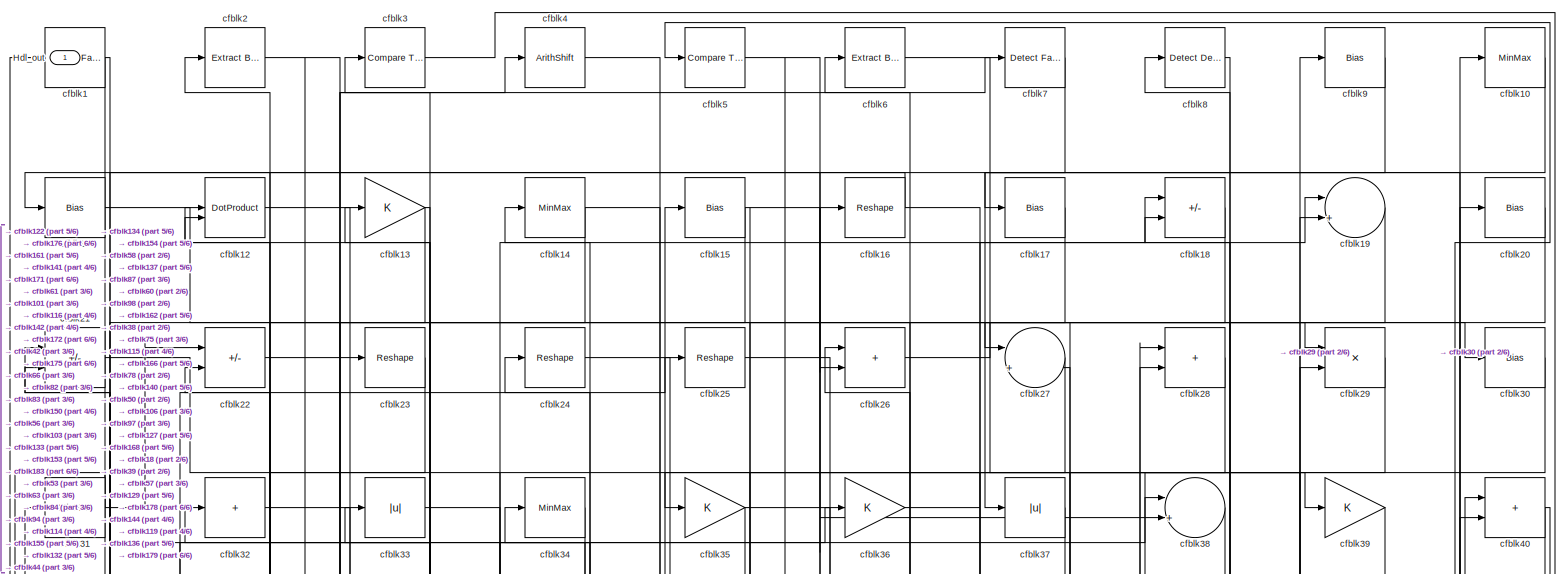
[diagram: root canvas - part 1/6, full width, top band]
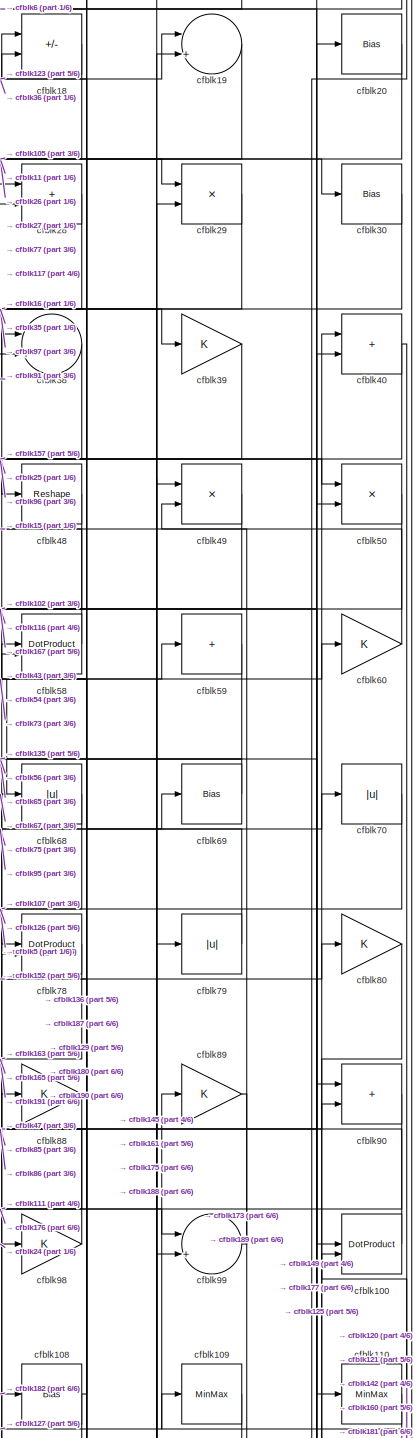
[diagram: root canvas - part 2/6, top right region]
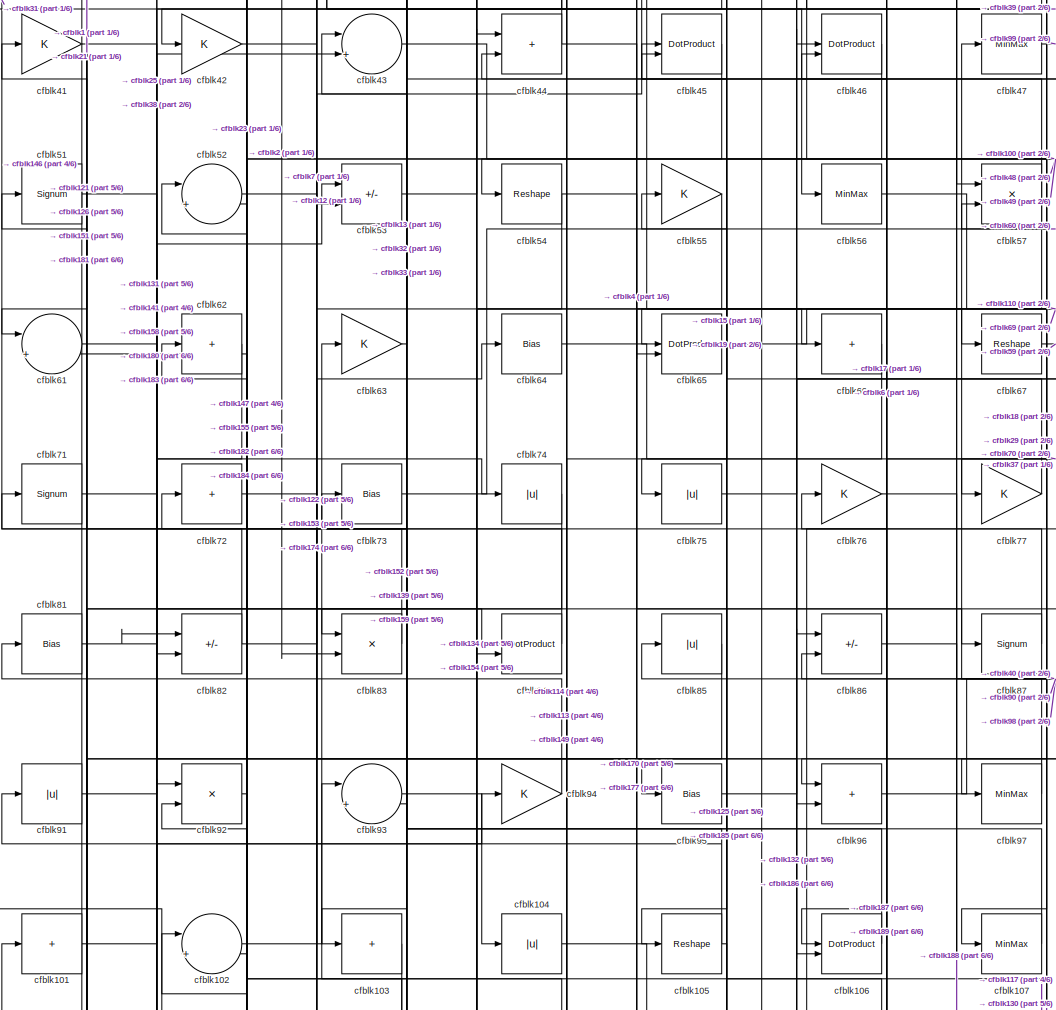
[diagram: root canvas - part 3/6, central region]
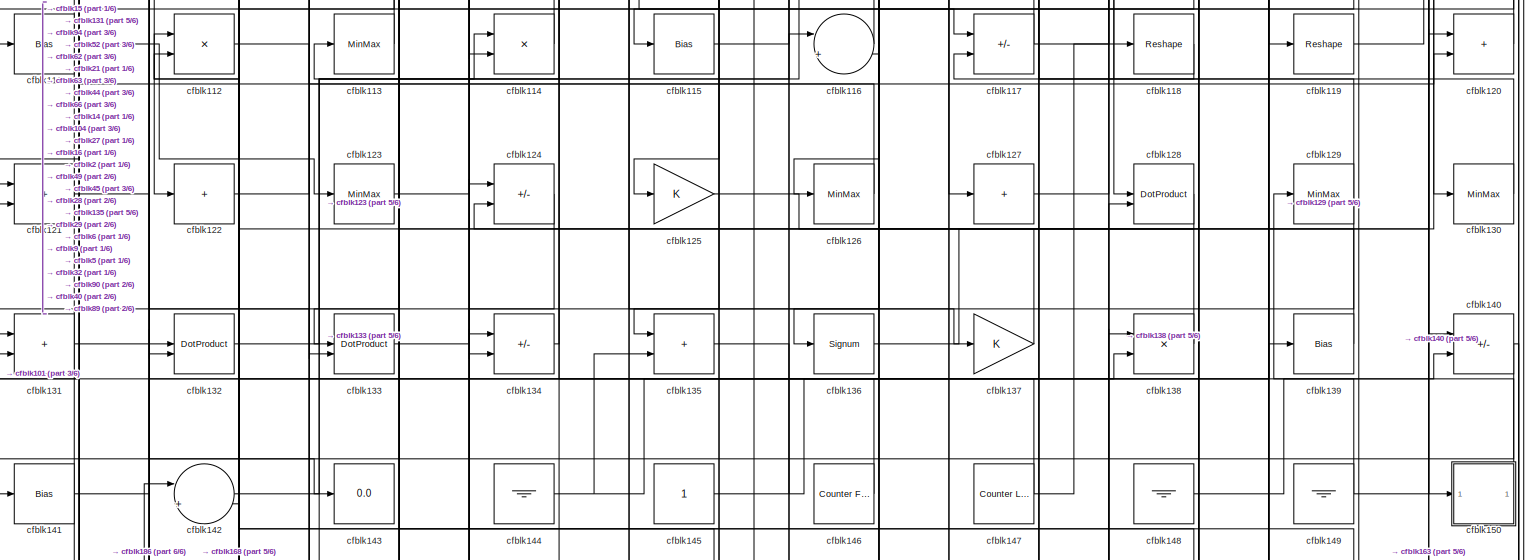
[diagram: root canvas - part 4/6, full width, middle band]
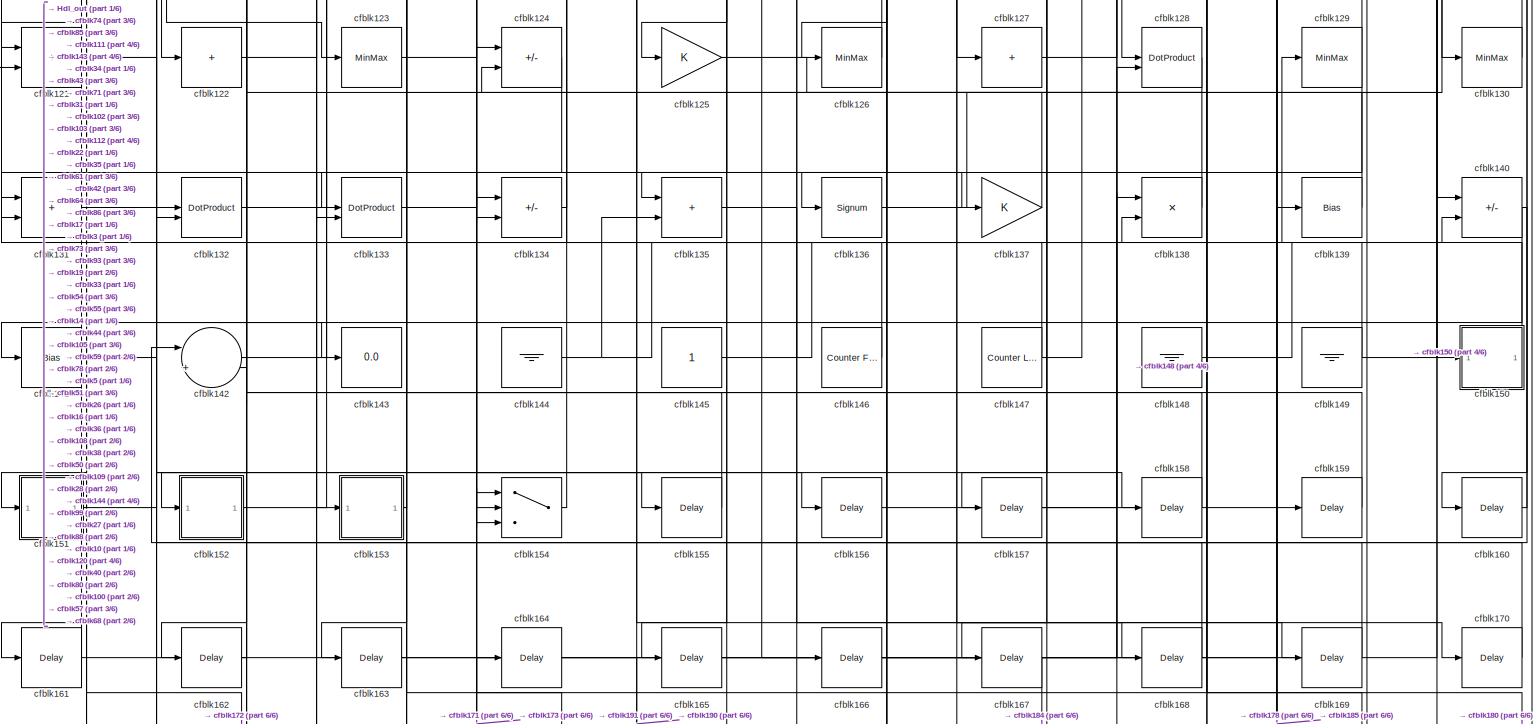
[diagram: root canvas - part 5/6, full width, bottom band]
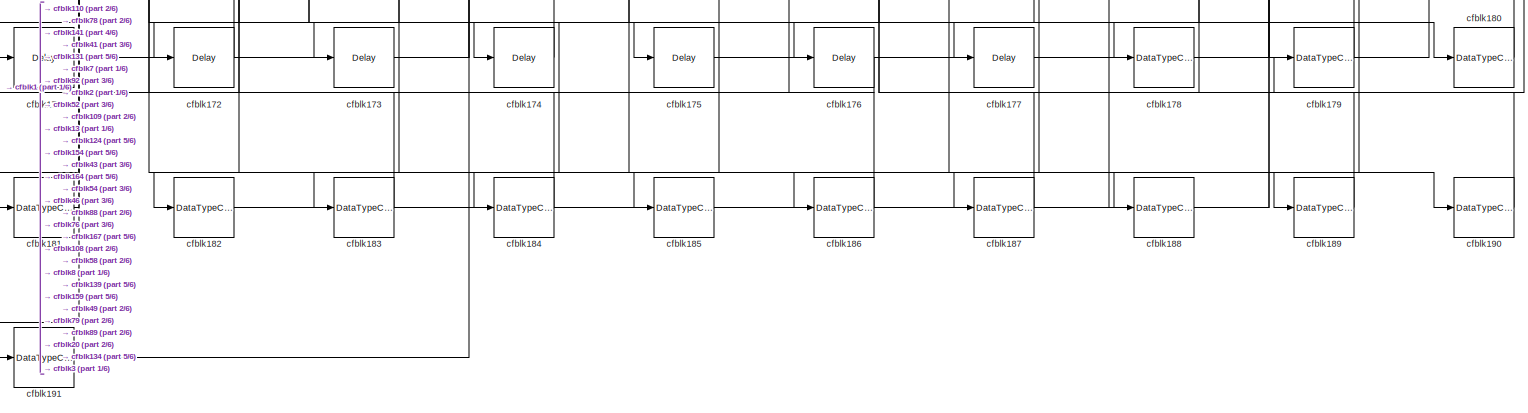
[diagram: root canvas - part 6/6, full width, bottom band]
MODEL slx_16d54eee16f9
KIND model
CONFIG AbsTol = auto
CONFIG EnableMultiTasking = off
CONFIG FixedStep = auto
CONFIG MaxStep = auto
CONFIG MinStep = auto
CONFIG RelTol = 1e-3
CONFIG SampleTimeConstraint = Unconstrained
CONFIG SolverName = VariableStepAuto
CONFIG StartTime = 0.0
CONFIG StopTime = 10.0
BLOCK [Outport] Hdl_out
  OutDataTypeStr = uint8
BLOCK [Reference] cfblk1  REF=hdlsllib/Logic and Bit
Operations/Detect Fall
Nonpositive
  SourceBlock = hdlsllib/Logic and Bit\nOperations/Detect Fall\nNonpositive
  SourceType = Detect Fall Nonpositive
BLOCK [MinMax] cfblk10
  OutDataTypeStr = uint8
BLOCK [DotProduct] cfblk100
  OutDataTypeStr = uint8
BLOCK [Sum] cfblk101
  IconShape = rectangular
  Inputs = +
  OutDataTypeStr = uint8
BLOCK [Sum] cfblk102
  Inputs = |++
  OutDataTypeStr = uint8
BLOCK [Sum] cfblk103
  IconShape = rectangular
  Inputs = +
  OutDataTypeStr = uint8
BLOCK [Abs] cfblk104
  OutDataTypeStr = uint8
  SaturateOnIntegerOverflow = off
BLOCK [Reshape] cfblk105
BLOCK [DotProduct] cfblk106
  OutDataTypeStr = uint8
BLOCK [MinMax] cfblk107
  OutDataTypeStr = uint8
BLOCK [Bias] cfblk108
  Bias = 0.0
  SaturateOnIntegerOverflow = off
BLOCK [MinMax] cfblk109
  OutDataTypeStr = uint8
BLOCK [Bias] cfblk11
  Bias = 0.0
  SaturateOnIntegerOverflow = off
BLOCK [MinMax] cfblk110
  OutDataTypeStr = uint8
BLOCK [Bias] cfblk111
  Bias = 0.0
  SaturateOnIntegerOverflow = off
BLOCK [Product] cfblk112
  Inputs = */
  OutDataTypeStr = uint8
  RndMeth = Zero
  SaturateOnIntegerOverflow = on
BLOCK [MinMax] cfblk113
  OutDataTypeStr = uint8
BLOCK [Product] cfblk114
  Inputs = */
  OutDataTypeStr = uint8
  RndMeth = Zero
  SaturateOnIntegerOverflow = on
BLOCK [Bias] cfblk115
  Bias = 0.0
  SaturateOnIntegerOverflow = off
BLOCK [Sum] cfblk116
  Inputs = |++
  OutDataTypeStr = uint8
BLOCK [Sum] cfblk117
  IconShape = rectangular
  Inputs = +-
  OutDataTypeStr = uint8
BLOCK [Reshape] cfblk118
BLOCK [Reshape] cfblk119
BLOCK [DotProduct] cfblk12
  OutDataTypeStr = uint8
BLOCK [Sum] cfblk120
  IconShape = rectangular
  OutDataTypeStr = uint8
BLOCK [Sum] cfblk121
  IconShape = rectangular
  OutDataTypeStr = uint8
BLOCK [Sum] cfblk122
  IconShape = rectangular
  Inputs = +
  OutDataTypeStr = uint8
BLOCK [MinMax] cfblk123
  OutDataTypeStr = uint8
BLOCK [Sum] cfblk124
  IconShape = rectangular
  Inputs = +-
  OutDataTypeStr = uint8
BLOCK [Gain] cfblk125
  OutDataTypeStr = uint8
BLOCK [MinMax] cfblk126
  OutDataTypeStr = uint8
BLOCK [Sum] cfblk127
  IconShape = rectangular
  Inputs = +
  OutDataTypeStr = uint8
BLOCK [DotProduct] cfblk128
  OutDataTypeStr = uint8
BLOCK [MinMax] cfblk129
  OutDataTypeStr = uint8
BLOCK [Gain] cfblk13
  OutDataTypeStr = uint8
BLOCK [MinMax] cfblk130
  OutDataTypeStr = uint8
BLOCK [Sum] cfblk131
  IconShape = rectangular
  OutDataTypeStr = uint8
BLOCK [DotProduct] cfblk132
  OutDataTypeStr = uint8
BLOCK [DotProduct] cfblk133
  OutDataTypeStr = uint8
BLOCK [Sum] cfblk134
  IconShape = rectangular
  Inputs = +-
  OutDataTypeStr = uint8
BLOCK [Sum] cfblk135
  IconShape = rectangular
  OutDataTypeStr = uint8
BLOCK [Signum] cfblk136
BLOCK [Gain] cfblk137
  OutDataTypeStr = uint8
BLOCK [Product] cfblk138
  Inputs = */
  OutDataTypeStr = uint8
  RndMeth = Zero
  SaturateOnIntegerOverflow = on
BLOCK [Bias] cfblk139
  Bias = 0.0
  SaturateOnIntegerOverflow = off
BLOCK [MinMax] cfblk14
  OutDataTypeStr = uint8
BLOCK [Sum] cfblk140
  IconShape = rectangular
  Inputs = +-
  OutDataTypeStr = uint8
BLOCK [Bias] cfblk141
  Bias = 0.0
  SaturateOnIntegerOverflow = off
BLOCK [Sum] cfblk142
  Inputs = |++
  OutDataTypeStr = uint8
BLOCK [Display] cfblk143
  Decimation = 1
BLOCK [Ground] cfblk144
BLOCK [Constant] cfblk145
  OutDataTypeStr = uint8
  SampleTime = -1
BLOCK [Reference] cfblk146  REF=hdlsllib/Sources/Counter
Free-Running
  SourceBlock = hdlsllib/Sources/Counter\nFree-Running
  SourceType = Counter Free-Running
BLOCK [Reference] cfblk147  REF=hdlsllib/Sources/Counter
Limited
  SourceBlock = hdlsllib/Sources/Counter\nLimited
  SourceType = Counter Limited
BLOCK [Ground] cfblk148
BLOCK [Ground] cfblk149
BLOCK [Bias] cfblk15
  Bias = 0.0
  SaturateOnIntegerOverflow = off
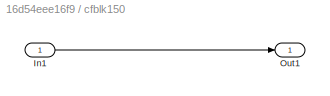
BLOCK [SubSystem] cfblk150
  LibrarySourceBlock = hdlsllib/Ports &\nSubsystems/Subsystem
BLOCK [Inport] cfblk150/In1
BLOCK [Outport] cfblk150/Out1
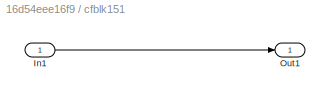
BLOCK [SubSystem] cfblk151
  LibrarySourceBlock = hdlsllib/Ports &\nSubsystems/Subsystem
BLOCK [Inport] cfblk151/In1
BLOCK [Outport] cfblk151/Out1
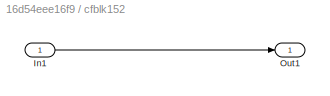
BLOCK [SubSystem] cfblk152
  LibrarySourceBlock = hdlsllib/Ports &\nSubsystems/Subsystem
BLOCK [Inport] cfblk152/In1
BLOCK [Outport] cfblk152/Out1
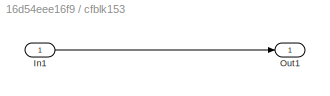
BLOCK [SubSystem] cfblk153
  LibrarySourceBlock = hdlsllib/Ports &\nSubsystems/Subsystem
BLOCK [Inport] cfblk153/In1
BLOCK [Outport] cfblk153/Out1
BLOCK [Switch] cfblk154
  InputSameDT = off
  OutDataTypeStr = uint8
  SaturateOnIntegerOverflow = off
BLOCK [Delay] cfblk155
  InputPortMap = u0
  SampleTime = 1
BLOCK [Delay] cfblk156
  InputPortMap = u0
  SampleTime = 1
BLOCK [Delay] cfblk157
  InputPortMap = u0
  SampleTime = 1
BLOCK [Delay] cfblk158
  InputPortMap = u0
  SampleTime = 1
BLOCK [Delay] cfblk159
  InputPortMap = u0
  SampleTime = 1
BLOCK [Reshape] cfblk16
BLOCK [Delay] cfblk160
  InputPortMap = u0
  SampleTime = 1
BLOCK [Delay] cfblk161
  InputPortMap = u0
  SampleTime = 1
BLOCK [Delay] cfblk162
  InputPortMap = u0
  SampleTime = 1
BLOCK [Delay] cfblk163
  InputPortMap = u0
  SampleTime = 1
BLOCK [Delay] cfblk164
  InputPortMap = u0
  SampleTime = 1
BLOCK [Delay] cfblk165
  InputPortMap = u0
  SampleTime = 1
BLOCK [Delay] cfblk166
  InputPortMap = u0
  SampleTime = 1
BLOCK [Delay] cfblk167
  InputPortMap = u0
  SampleTime = 1
BLOCK [Delay] cfblk168
  InputPortMap = u0
  SampleTime = 1
BLOCK [Delay] cfblk169
  InputPortMap = u0
  SampleTime = 1
BLOCK [Bias] cfblk17
  Bias = 0.0
  SaturateOnIntegerOverflow = off
BLOCK [Delay] cfblk170
  InputPortMap = u0
  SampleTime = 1
BLOCK [Delay] cfblk171
  InputPortMap = u0
  SampleTime = 1
BLOCK [Delay] cfblk172
  InputPortMap = u0
  SampleTime = 1
BLOCK [Delay] cfblk173
  InputPortMap = u0
  SampleTime = 1
BLOCK [Delay] cfblk174
  InputPortMap = u0
  SampleTime = 1
BLOCK [Delay] cfblk175
  InputPortMap = u0
  SampleTime = 1
BLOCK [Delay] cfblk176
  InputPortMap = u0
  SampleTime = 1
BLOCK [Delay] cfblk177
  InputPortMap = u0
  SampleTime = 1
BLOCK [DataTypeConversion] cfblk178
  OutDataTypeStr = uint8
  RndMeth = Floor
  SaturateOnIntegerOverflow = off
BLOCK [DataTypeConversion] cfblk179
  OutDataTypeStr = uint8
  RndMeth = Floor
  SaturateOnIntegerOverflow = off
BLOCK [Sum] cfblk18
  IconShape = rectangular
  Inputs = +-
  OutDataTypeStr = uint8
BLOCK [DataTypeConversion] cfblk180
  OutDataTypeStr = uint8
  RndMeth = Floor
  SaturateOnIntegerOverflow = off
BLOCK [DataTypeConversion] cfblk181
  OutDataTypeStr = uint8
  RndMeth = Floor
  SaturateOnIntegerOverflow = off
BLOCK [DataTypeConversion] cfblk182
  OutDataTypeStr = uint8
  RndMeth = Floor
  SaturateOnIntegerOverflow = off
BLOCK [DataTypeConversion] cfblk183
  OutDataTypeStr = uint8
  RndMeth = Floor
  SaturateOnIntegerOverflow = off
BLOCK [DataTypeConversion] cfblk184
  OutDataTypeStr = uint8
  RndMeth = Floor
  SaturateOnIntegerOverflow = off
BLOCK [DataTypeConversion] cfblk185
  OutDataTypeStr = uint8
  RndMeth = Floor
  SaturateOnIntegerOverflow = off
BLOCK [DataTypeConversion] cfblk186
  OutDataTypeStr = uint8
  RndMeth = Floor
  SaturateOnIntegerOverflow = off
BLOCK [DataTypeConversion] cfblk187
  OutDataTypeStr = uint8
  RndMeth = Floor
  SaturateOnIntegerOverflow = off
BLOCK [DataTypeConversion] cfblk188
  OutDataTypeStr = uint8
  RndMeth = Floor
  SaturateOnIntegerOverflow = off
BLOCK [DataTypeConversion] cfblk189
  OutDataTypeStr = uint8
  RndMeth = Floor
  SaturateOnIntegerOverflow = off
BLOCK [Sum] cfblk19
  Inputs = |++
  OutDataTypeStr = uint8
BLOCK [DataTypeConversion] cfblk190
  OutDataTypeStr = uint8
  RndMeth = Floor
  SaturateOnIntegerOverflow = off
BLOCK [DataTypeConversion] cfblk191
  OutDataTypeStr = uint8
  RndMeth = Floor
  SaturateOnIntegerOverflow = off
BLOCK [Reference] cfblk2  REF=simulink/Logic and Bit
Operations/Extract Bits
  LibrarySourceBlock = hdlsllib/Logic and Bit\nOperations/Extract Bits
  SourceBlock = simulink/Logic and Bit\nOperations/Extract Bits
  SourceType = Extract Bits
BLOCK [Bias] cfblk20
  Bias = 0.0
  SaturateOnIntegerOverflow = off
BLOCK [Sum] cfblk21
  IconShape = rectangular
  Inputs = +-
  OutDataTypeStr = uint8
BLOCK [Sum] cfblk22
  IconShape = rectangular
  Inputs = +-
  OutDataTypeStr = uint8
BLOCK [Reshape] cfblk23
BLOCK [Reshape] cfblk24
BLOCK [Reshape] cfblk25
BLOCK [Sum] cfblk26
  IconShape = rectangular
  OutDataTypeStr = uint8
BLOCK [Sum] cfblk27
  Inputs = |++
  OutDataTypeStr = uint8
BLOCK [Sum] cfblk28
  IconShape = rectangular
  OutDataTypeStr = uint8
BLOCK [Product] cfblk29
  Inputs = */
  OutDataTypeStr = uint8
  RndMeth = Zero
  SaturateOnIntegerOverflow = on
BLOCK [Reference] cfblk3  REF=hdlsllib/Logic and Bit
Operations/Compare
To Zero
  SourceBlock = hdlsllib/Logic and Bit\nOperations/Compare\nTo Zero
  SourceType = Compare To Zero
BLOCK [Bias] cfblk30
  Bias = 0.0
  SaturateOnIntegerOverflow = off
BLOCK [MinMax] cfblk31
  OutDataTypeStr = uint8
BLOCK [Sum] cfblk32
  IconShape = rectangular
  Inputs = +
  OutDataTypeStr = uint8
BLOCK [Abs] cfblk33
  OutDataTypeStr = uint8
  SaturateOnIntegerOverflow = off
BLOCK [MinMax] cfblk34
  OutDataTypeStr = uint8
BLOCK [Gain] cfblk35
  OutDataTypeStr = uint8
BLOCK [Gain] cfblk36
  OutDataTypeStr = uint8
BLOCK [Abs] cfblk37
  OutDataTypeStr = uint8
  SaturateOnIntegerOverflow = off
BLOCK [Sum] cfblk38
  Inputs = |++
  OutDataTypeStr = uint8
BLOCK [Gain] cfblk39
  OutDataTypeStr = uint8
BLOCK [ArithShift] cfblk4
  BitShiftNumber = 8
  InputPortMap = u0
BLOCK [Sum] cfblk40
  IconShape = rectangular
  OutDataTypeStr = uint8
BLOCK [Gain] cfblk41
  OutDataTypeStr = uint8
BLOCK [Gain] cfblk42
  OutDataTypeStr = uint8
BLOCK [Sum] cfblk43
  Inputs = |++
  OutDataTypeStr = uint8
BLOCK [Sum] cfblk44
  IconShape = rectangular
  OutDataTypeStr = uint8
BLOCK [DotProduct] cfblk45
  OutDataTypeStr = uint8
BLOCK [DotProduct] cfblk46
  OutDataTypeStr = uint8
BLOCK [MinMax] cfblk47
  OutDataTypeStr = uint8
BLOCK [Reshape] cfblk48
BLOCK [Product] cfblk49
  Inputs = */
  OutDataTypeStr = uint8
  RndMeth = Zero
  SaturateOnIntegerOverflow = on
BLOCK [Reference] cfblk5  REF=hdlsllib/Logic and Bit
Operations/Compare
To Zero
  SourceBlock = hdlsllib/Logic and Bit\nOperations/Compare\nTo Zero
  SourceType = Compare To Zero
BLOCK [Product] cfblk50
  Inputs = */
  OutDataTypeStr = uint8
  RndMeth = Zero
  SaturateOnIntegerOverflow = on
BLOCK [Signum] cfblk51
BLOCK [Sum] cfblk52
  Inputs = |++
  OutDataTypeStr = uint8
BLOCK [Sum] cfblk53
  IconShape = rectangular
  Inputs = +-
  OutDataTypeStr = uint8
BLOCK [Reshape] cfblk54
BLOCK [Gain] cfblk55
  OutDataTypeStr = uint8
BLOCK [MinMax] cfblk56
  OutDataTypeStr = uint8
BLOCK [Product] cfblk57
  Inputs = */
  OutDataTypeStr = uint8
  RndMeth = Zero
  SaturateOnIntegerOverflow = on
BLOCK [DotProduct] cfblk58
  OutDataTypeStr = uint8
BLOCK [Sum] cfblk59
  IconShape = rectangular
  Inputs = +
  OutDataTypeStr = uint8
BLOCK [Reference] cfblk6  REF=simulink/Logic and Bit
Operations/Extract Bits
  LibrarySourceBlock = hdlsllib/Logic and Bit\nOperations/Extract Bits
  SourceBlock = simulink/Logic and Bit\nOperations/Extract Bits
  SourceType = Extract Bits
BLOCK [Gain] cfblk60
  OutDataTypeStr = uint8
BLOCK [Sum] cfblk61
  Inputs = |++
  OutDataTypeStr = uint8
BLOCK [Sum] cfblk62
  IconShape = rectangular
  Inputs = +
  OutDataTypeStr = uint8
BLOCK [Gain] cfblk63
  OutDataTypeStr = uint8
BLOCK [Bias] cfblk64
  Bias = 0.0
  SaturateOnIntegerOverflow = off
BLOCK [DotProduct] cfblk65
  OutDataTypeStr = uint8
BLOCK [Sum] cfblk66
  IconShape = rectangular
  Inputs = +
  OutDataTypeStr = uint8
BLOCK [Reshape] cfblk67
BLOCK [Abs] cfblk68
  OutDataTypeStr = uint8
  SaturateOnIntegerOverflow = off
BLOCK [Bias] cfblk69
  Bias = 0.0
  SaturateOnIntegerOverflow = off
BLOCK [Reference] cfblk7  REF=hdlsllib/Logic and Bit
Operations/Detect Fall
Negative
  SourceBlock = hdlsllib/Logic and Bit\nOperations/Detect Fall\nNegative
  SourceType = Detect Fall Negative
BLOCK [Abs] cfblk70
  OutDataTypeStr = uint8
  SaturateOnIntegerOverflow = off
BLOCK [Signum] cfblk71
BLOCK [Sum] cfblk72
  IconShape = rectangular
  Inputs = +
  OutDataTypeStr = uint8
BLOCK [Bias] cfblk73
  Bias = 0.0
  SaturateOnIntegerOverflow = off
BLOCK [Abs] cfblk74
  OutDataTypeStr = uint8
  SaturateOnIntegerOverflow = off
BLOCK [Abs] cfblk75
  OutDataTypeStr = uint8
  SaturateOnIntegerOverflow = off
BLOCK [Gain] cfblk76
  OutDataTypeStr = uint8
BLOCK [Gain] cfblk77
  OutDataTypeStr = uint8
BLOCK [DotProduct] cfblk78
  OutDataTypeStr = uint8
BLOCK [Abs] cfblk79
  OutDataTypeStr = uint8
  SaturateOnIntegerOverflow = off
BLOCK [Reference] cfblk8  REF=simulink/Logic and Bit
Operations/Detect
Decrease
  LibrarySourceBlock = hdlsllib/Logic and Bit\nOperations/Detect\nDecrease
  SourceBlock = simulink/Logic and Bit\nOperations/Detect\nDecrease
  SourceType = Detect Decrease
BLOCK [Gain] cfblk80
  OutDataTypeStr = uint8
BLOCK [Bias] cfblk81
  Bias = 0.0
  SaturateOnIntegerOverflow = off
BLOCK [Sum] cfblk82
  IconShape = rectangular
  Inputs = +-
  OutDataTypeStr = uint8
BLOCK [Product] cfblk83
  Inputs = */
  OutDataTypeStr = uint8
  RndMeth = Zero
  SaturateOnIntegerOverflow = on
BLOCK [DotProduct] cfblk84
  OutDataTypeStr = uint8
BLOCK [Abs] cfblk85
  OutDataTypeStr = uint8
  SaturateOnIntegerOverflow = off
BLOCK [Sum] cfblk86
  IconShape = rectangular
  Inputs = +-
  OutDataTypeStr = uint8
BLOCK [Signum] cfblk87
BLOCK [Gain] cfblk88
  OutDataTypeStr = uint8
BLOCK [Gain] cfblk89
  OutDataTypeStr = uint8
BLOCK [Bias] cfblk9
  Bias = 0.0
  SaturateOnIntegerOverflow = off
BLOCK [Sum] cfblk90
  IconShape = rectangular
  OutDataTypeStr = uint8
BLOCK [Abs] cfblk91
  OutDataTypeStr = uint8
  SaturateOnIntegerOverflow = off
BLOCK [Product] cfblk92
  Inputs = */
  OutDataTypeStr = uint8
  RndMeth = Zero
  SaturateOnIntegerOverflow = on
BLOCK [Sum] cfblk93
  Inputs = |++
  OutDataTypeStr = uint8
BLOCK [Gain] cfblk94
  OutDataTypeStr = uint8
BLOCK [Bias] cfblk95
  Bias = 0.0
  SaturateOnIntegerOverflow = off
BLOCK [Sum] cfblk96
  IconShape = rectangular
  OutDataTypeStr = uint8
BLOCK [MinMax] cfblk97
  OutDataTypeStr = uint8
BLOCK [Gain] cfblk98
  OutDataTypeStr = uint8
BLOCK [Sum] cfblk99
  Inputs = |++
  OutDataTypeStr = uint8
LINE cfblk100:1 -> cfblk85:1
LINE cfblk101:1 -> cfblk25:1
NET cfblk102:1 -> cfblk45:2, cfblk93:1
LINE cfblk103:1 -> cfblk152:1
LINE cfblk104:1 -> cfblk117:1
NET cfblk105:1 -> cfblk125:1, cfblk81:1, cfblk91:1
LINE cfblk106:1 -> cfblk71:1
LINE cfblk107:1 -> cfblk72:1
NET cfblk108:1 -> cfblk136:1, cfblk187:1, cfblk18:2
LINE cfblk109:1 -> cfblk173:1
LINE cfblk10:1 -> cfblk37:1
LINE cfblk110:1 -> cfblk181:1
NET cfblk111:1 -> cfblk123:1, cfblk133:2
LINE cfblk112:1 -> cfblk120:2
LINE cfblk113:1 -> cfblk62:1
LINE cfblk114:1 -> cfblk63:1
LINE cfblk115:1 -> cfblk16:1
LINE cfblk116:1 -> cfblk2:1
NET cfblk117:1 -> cfblk28:1, cfblk45:1
LINE cfblk118:1 -> cfblk117:2
LINE cfblk119:1 -> cfblk5:1
LINE cfblk11:1 -> cfblk29:1
LINE cfblk120:1 -> cfblk89:1
LINE cfblk121:1 -> cfblk156:1
LINE cfblk122:1 -> cfblk64:1
LINE cfblk123:1 -> cfblk19:1
LINE cfblk124:1 -> cfblk154:2
LINE cfblk125:1 -> cfblk40:1
LINE cfblk126:1 -> cfblk51:1
LINE cfblk127:1 -> cfblk109:1
LINE cfblk128:1 -> cfblk124:2
NET cfblk129:1 -> cfblk131:1, cfblk27:2, cfblk88:1
LINE cfblk12:1 -> cfblk56:1
NET cfblk130:1 -> cfblk57:2, cfblk68:1
NET cfblk131:1 -> cfblk143:1, cfblk43:2
LINE cfblk132:1 -> cfblk86:1
LINE cfblk133:1 -> cfblk36:1
LINE cfblk134:1 -> cfblk14:1
LINE cfblk135:1 -> cfblk169:1
LINE cfblk136:1 -> cfblk10:1
LINE cfblk137:1 -> cfblk26:1
LINE cfblk138:1 -> cfblk112:1
LINE cfblk139:1 -> cfblk73:1
NET cfblk13:1 -> cfblk183:1, cfblk53:2
NET cfblk140:1 -> cfblk160:1, cfblk161:1
NET cfblk141:1 -> cfblk186:1, cfblk94:1
LINE cfblk142:1 -> cfblk114:1
NET cfblk144:1 -> cfblk135:2, cfblk9:1
NET cfblk145:1 -> cfblk116:1, cfblk29:2
LINE cfblk146:1 -> cfblk101:1
NET cfblk147:1 -> cfblk118:1, cfblk52:1
LINE cfblk148:1 -> cfblk140:2
NET cfblk149:1 -> cfblk44:2, cfblk90:1
NET cfblk14:1 -> cfblk137:1, cfblk142:2
LINE cfblk150/In1:1 -> cfblk150/Out1:1
LINE cfblk150:1 -> cfblk129:1
LINE cfblk151/In1:1 -> cfblk151/Out1:1
LINE cfblk151:1 -> cfblk138:2
LINE cfblk152/In1:1 -> cfblk152/Out1:1
LINE cfblk152:1 -> cfblk80:1
LINE cfblk153/In1:1 -> cfblk153/Out1:1
LINE cfblk153:1 -> cfblk3:1
LINE cfblk154:1 -> cfblk34:1
LINE cfblk155:1 -> cfblk102:1
LINE cfblk156:1 -> cfblk128:2
LINE cfblk157:1 -> cfblk19:2
LINE cfblk158:1 -> cfblk61:2
LINE cfblk159:1 -> cfblk93:2
NET cfblk15:1 -> cfblk141:1, cfblk38:2, cfblk75:1
LINE cfblk160:1 -> cfblk100:2
NET cfblk161:1 -> Hdl_out:1, cfblk99:2
LINE cfblk162:1 -> cfblk22:2
LINE cfblk163:1 -> cfblk120:1
LINE cfblk164:1 -> cfblk190:1
LINE cfblk165:1 -> cfblk28:2
LINE cfblk166:1 -> cfblk138:1
LINE cfblk167:1 -> cfblk184:1
LINE cfblk168:1 -> cfblk112:2
LINE cfblk169:1 -> cfblk132:1
NET cfblk16:1 -> cfblk11:1, cfblk168:1, cfblk39:1
LINE cfblk170:1 -> cfblk86:2
LINE cfblk171:1 -> cfblk124:1
LINE cfblk172:1 -> cfblk131:2
LINE cfblk173:1 -> cfblk154:1
LINE cfblk174:1 -> cfblk43:1
LINE cfblk175:1 -> cfblk49:1
LINE cfblk176:1 -> cfblk1:1
LINE cfblk177:1 -> cfblk20:1
LINE cfblk178:1 -> cfblk139:1
LINE cfblk179:1 -> cfblk8:1
NET cfblk17:1 -> cfblk103:1, cfblk106:1, cfblk133:1
NET cfblk180:1 -> cfblk134:1, cfblk78:2
LINE cfblk181:1 -> cfblk41:1
LINE cfblk182:1 -> cfblk108:1
LINE cfblk183:1 -> cfblk92:1
LINE cfblk184:1 -> cfblk92:2
LINE cfblk185:1 -> cfblk159:1
LINE cfblk186:1 -> cfblk46:1
LINE cfblk187:1 -> cfblk46:2
LINE cfblk188:1 -> cfblk79:1
LINE cfblk189:1 -> cfblk76:1
NET cfblk18:1 -> cfblk27:1, cfblk77:1
LINE cfblk190:1 -> cfblk58:2
LINE cfblk191:1 -> cfblk164:1
LINE cfblk19:1 -> cfblk105:1
LINE cfblk1:1 -> cfblk61:1
LINE cfblk20:1 -> cfblk48:1
NET cfblk21:1 -> cfblk114:2, cfblk57:1
LINE cfblk22:1 -> cfblk23:1
LINE cfblk23:1 -> cfblk42:1
LINE cfblk24:1 -> cfblk98:1
LINE cfblk25:1 -> cfblk50:1
LINE cfblk26:1 -> cfblk30:1
LINE cfblk27:1 -> cfblk115:1
LINE cfblk28:1 -> cfblk128:1
LINE cfblk29:1 -> cfblk97:1
NET cfblk2:1 -> cfblk175:1, cfblk66:1, cfblk83:2
LINE cfblk30:1 -> cfblk35:1
NET cfblk31:1 -> cfblk122:1, cfblk22:1
LINE cfblk32:1 -> cfblk150:1
LINE cfblk33:1 -> cfblk155:1
LINE cfblk34:1 -> cfblk132:2
NET cfblk35:1 -> cfblk140:1, cfblk162:1
NET cfblk36:1 -> cfblk127:1, cfblk18:1
LINE cfblk37:1 -> cfblk83:1
LINE cfblk38:1 -> cfblk157:1
LINE cfblk39:1 -> cfblk96:1
LINE cfblk3:1 -> cfblk179:1
NET cfblk40:1 -> cfblk121:2, cfblk142:1
LINE cfblk41:1 -> cfblk180:1
NET cfblk42:1 -> cfblk153:1, cfblk4:1
LINE cfblk43:1 -> cfblk100:1
NET cfblk44:1 -> cfblk170:1, cfblk21:2
LINE cfblk45:1 -> cfblk52:2
LINE cfblk46:1 -> cfblk185:1
LINE cfblk47:1 -> cfblk99:1
LINE cfblk48:1 -> cfblk54:1
NET cfblk49:1 -> cfblk102:2, cfblk116:2
LINE cfblk4:1 -> cfblk87:1
LINE cfblk50:1 -> cfblk167:1
NET cfblk51:1 -> cfblk74:1, cfblk95:1
LINE cfblk52:1 -> cfblk174:1
LINE cfblk53:1 -> cfblk44:1
NET cfblk54:1 -> cfblk154:3, cfblk177:1, cfblk84:2
LINE cfblk55:1 -> cfblk134:2
LINE cfblk56:1 -> cfblk110:1
NET cfblk57:1 -> cfblk12:2, cfblk65:2
LINE cfblk58:1 -> cfblk24:1
LINE cfblk59:1 -> cfblk135:1
NET cfblk5:1 -> cfblk166:1, cfblk78:1
LINE cfblk60:1 -> cfblk15:1
LINE cfblk61:1 -> cfblk84:1
LINE cfblk62:1 -> cfblk82:2
LINE cfblk63:1 -> cfblk33:1
LINE cfblk64:1 -> cfblk106:2
LINE cfblk65:1 -> cfblk67:1
LINE cfblk66:1 -> cfblk113:1
LINE cfblk67:1 -> cfblk59:1
LINE cfblk68:1 -> cfblk126:1
LINE cfblk69:1 -> cfblk65:1
NET cfblk6:1 -> cfblk119:1, cfblk50:2
LINE cfblk70:1 -> cfblk107:1
LINE cfblk71:1 -> cfblk158:1
LINE cfblk72:1 -> cfblk96:2
LINE cfblk73:1 -> cfblk60:1
LINE cfblk74:1 -> cfblk121:1
LINE cfblk75:1 -> cfblk70:1
LINE cfblk76:1 -> cfblk188:1
LINE cfblk77:1 -> cfblk55:1
NET cfblk78:1 -> cfblk163:1, cfblk165:1, cfblk191:1
LINE cfblk79:1 -> cfblk58:1
NET cfblk7:1 -> cfblk171:1, cfblk172:1, cfblk26:2
LINE cfblk80:1 -> cfblk130:1
NET cfblk81:1 -> cfblk53:1, cfblk82:1
NET cfblk82:1 -> cfblk31:1, cfblk7:1
LINE cfblk83:1 -> cfblk12:1
LINE cfblk84:1 -> cfblk32:1
LINE cfblk85:1 -> cfblk151:1
LINE cfblk86:1 -> cfblk90:2
LINE cfblk87:1 -> cfblk21:1
LINE cfblk88:1 -> cfblk176:1
LINE cfblk89:1 -> cfblk189:1
LINE cfblk8:1 -> cfblk178:1
LINE cfblk90:1 -> cfblk111:1
LINE cfblk91:1 -> cfblk38:1
LINE cfblk92:1 -> cfblk182:1
LINE cfblk93:1 -> cfblk104:1
LINE cfblk94:1 -> cfblk13:1
LINE cfblk95:1 -> cfblk69:1
LINE cfblk96:1 -> cfblk40:2
LINE cfblk97:1 -> cfblk6:1
LINE cfblk98:1 -> cfblk47:1
LINE cfblk99:1 -> cfblk49:2
LINE cfblk9:1 -> cfblk17:1
note: NET lines group one-source signal fan-out (src -> all destinations, sorted); 1:1 wires keep LINE
